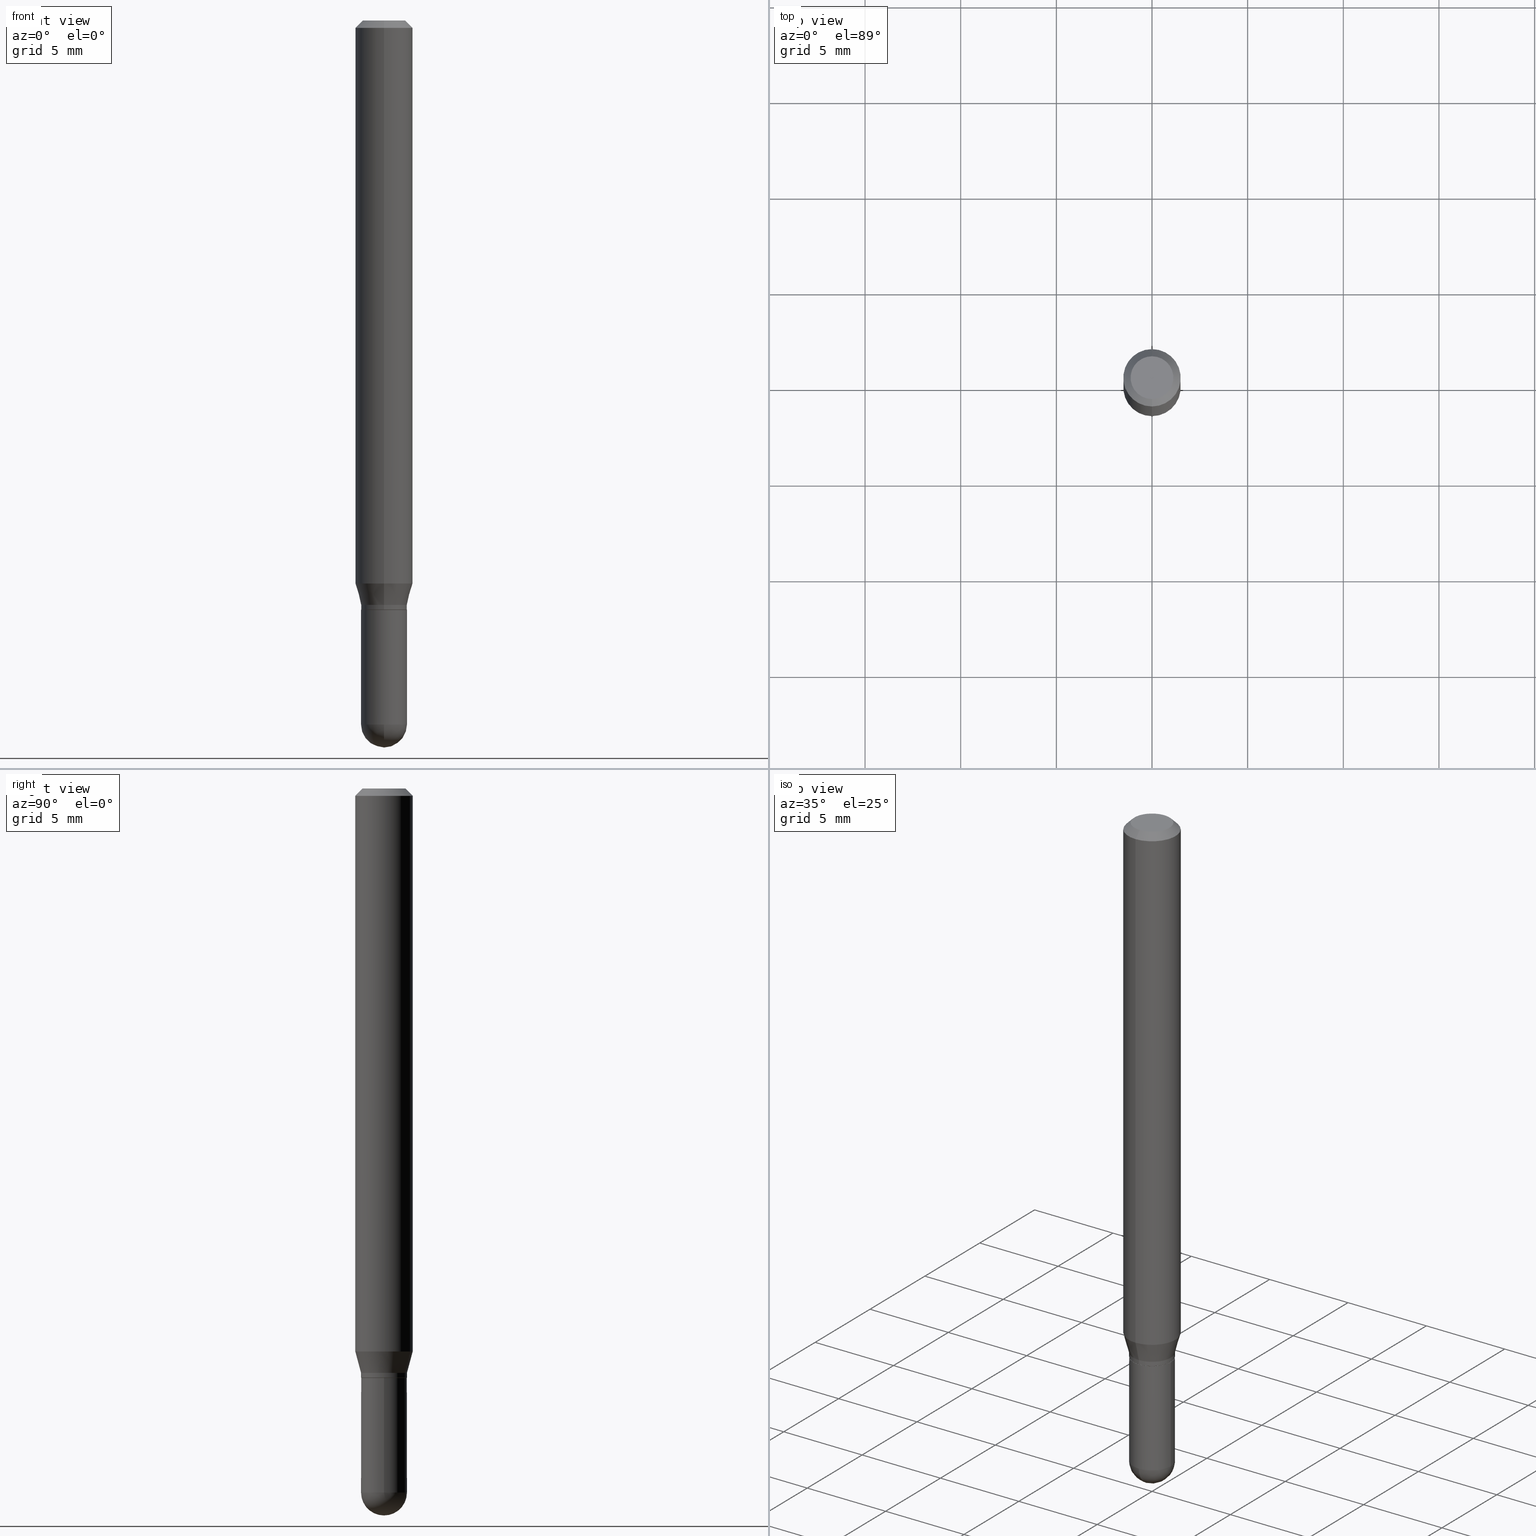
[diagram: canonical four-view strip — front | top / right | iso, engineering-drawing reading convention]
A machine part, canonical four-view strip (front | top / right | iso — engineering-drawing reading convention). The complete STEP part file that produces these views, byte-faithful:
ISO-10303-21;
HEADER;
FILE_DESCRIPTION (( 'STEP AP203' ),
    '1' );
FILE_NAME ('01963.STEP',
    '2024-03-07T19:49:01',
    ( '' ),
    ( '' ),
    'SwSTEP 2.0',
    'SolidWorks 2023',
    '' );
FILE_SCHEMA (( 'CONFIG_CONTROL_DESIGN' ));
ENDSEC;

DATA;
#1 = DIRECTION ( 'NONE',  ( -2.445405226276608487E-29, 3.491572388890901817E-15, 1.000000000000000000 ) ) ;
#2 = PERSON_AND_ORGANIZATION_ROLE ( 'creator' ) ;
#3 = ORIENTED_EDGE ( 'NONE', *, *, #89, .T. ) ;
#4 = AXIS2_PLACEMENT_3D ( 'NONE', #217, #78, #372 ) ;
#5 = SECURITY_CLASSIFICATION ( '', '', #176 ) ;
#6 = DIRECTION ( 'NONE',  ( 2.445405226276608487E-29, -3.491572388890901817E-15, -1.000000000000000000 ) ) ;
#7 = EDGE_CURVE ( 'NONE', #102, #155, #228, .T. ) ;
#8 = VERTEX_POINT ( 'NONE', #29 ) ;
#9 = DIRECTION ( 'NONE',  ( 4.937700262164548042E-15, 0.7071067811865451302, -0.7071067811865499042 ) ) ;
#10 = CC_DESIGN_PERSON_AND_ORGANIZATION_ASSIGNMENT ( #162, #508, ( #351 ) ) ;
#11 = AXIS2_PLACEMENT_3D ( 'NONE', #232, #469, #106 ) ;
#12 = ORIENTED_EDGE ( 'NONE', *, *, #163, .T. ) ;
#13 = LINE ( 'NONE', #483, #124 ) ;
#14 = ORIENTED_EDGE ( 'NONE', *, *, #385, .F. ) ;
#15 = CARTESIAN_POINT ( 'NONE',  ( -4.123439461173736383E-16, -0.05905000000000005383, -0.01499999999999981730 ) ) ;
#16 = AXIS2_PLACEMENT_3D ( 'NONE', #199, #511, #202 ) ;
#17 = ORIENTED_EDGE ( 'NONE', *, *, #369, .T. ) ;
#18 = EDGE_CURVE ( 'NONE', #155, #102, #407, .T. ) ;
#19 = DIRECTION ( 'NONE',  ( -2.445405226276608768E-29, 3.491572388890901817E-15, 1.000000000000000000 ) ) ;
#20 = DIRECTION ( 'NONE',  ( -2.445405226276608487E-29, 3.491572388890901817E-15, 1.000000000000000000 ) ) ;
#21 = EDGE_LOOP ( 'NONE', ( #410, #258, #398, #389, #46 ) ) ;
#22 = DIRECTION ( 'NONE',  ( -6.982962677686265922E-15, -1.000000000000000000, 3.491572388890901817E-15 ) ) ;
#23 = CC_DESIGN_PERSON_AND_ORGANIZATION_ASSIGNMENT ( #344, #2, ( #86 ) ) ;
#24 = ORIENTED_EDGE ( 'NONE', *, *, #283, .T. ) ;
#25 = AXIS2_PLACEMENT_3D ( 'NONE', #215, #181, #326 ) ;
#26 = APPROVAL_ROLE ( '' ) ;
#27 = AXIS2_PLACEMENT_3D ( 'NONE', #380, #189, #40 ) ;
#28 = LINE ( 'NONE', #184, #448 ) ;
#29 = CARTESIAN_POINT ( 'NONE',  ( 3.776534640565222593E-16, 0.04724999999999585781, -1.202600000000000113 ) ) ;
#30 = ORIENTED_EDGE ( 'NONE', *, *, #377, .F. ) ;
#31 = ADVANCED_FACE ( 'NONE', ( #98 ), #250, .T. ) ;
#32 = EDGE_LOOP ( 'NONE', ( #298, #471, #35, #174 ) ) ;
#33 = CARTESIAN_POINT ( 'NONE',  ( -4.123439461173456337E-16, -0.05905000000000405758, -1.158561800470687464 ) ) ;
#34 = CARTESIAN_POINT ( 'NONE',  ( -3.536586717851222218E-16, -0.04404999999999999888, 1.299455316038616904E-16 ) ) ;
#35 = ORIENTED_EDGE ( 'NONE', *, *, #329, .F. ) ;
#36 = DIRECTION ( 'NONE',  ( 1.000000000000000000, -6.982962677686256455E-15, 0.000000000000000000 ) ) ;
#37 = CARTESIAN_POINT ( 'NONE',  ( -3.299449865206470168E-16, -0.04725000000000425388, -1.202599999999999669 ) ) ;
#38 = AXIS2_PLACEMENT_3D ( 'NONE', #79, #114, #343 ) ;
#39 = AXIS2_PLACEMENT_3D ( 'NONE', #341, #1, #461 ) ;
#40 = DIRECTION ( 'NONE',  ( -6.982962677686265922E-15, -1.000000000000000000, 4.626330217890369336E-15 ) ) ;
#41 = CARTESIAN_POINT ( 'NONE',  ( 3.668107839414918214E-31, -5.237358583336361453E-17, -0.01500000000000002373 ) ) ;
#42 = APPROVAL_ROLE ( '' ) ;
#43 = ADVANCED_FACE ( 'NONE', ( #136 ), #292, .F. ) ;
#44 = DIRECTION ( 'NONE',  ( -6.982962677686265922E-15, -1.000000000000000000, 2.890844437739957528E-15 ) ) ;
#45 = PERSON_AND_ORGANIZATION ( #394, #393 ) ;
#46 = ORIENTED_EDGE ( 'NONE', *, *, #81, .T. ) ;
#47 = CARTESIAN_POINT ( 'NONE',  ( 3.543117479841335070E-29, -5.058632737782891656E-15, -1.448849999999999971 ) ) ;
#48 = CIRCLE ( 'NONE', #285, 0.04724999999999998646 ) ;
#49 = EDGE_CURVE ( 'NONE', #74, #178, #290, .T. ) ;
#50 = ORIENTED_EDGE ( 'NONE', *, *, #18, .T. ) ;
#51 = APPROVAL_STATUS ( 'not_yet_approved' ) ;
#52 = FACE_OUTER_BOUND ( 'NONE', #166, .T. ) ;
#53 = DIRECTION ( 'NONE',  ( -6.982962677686265922E-15, -1.000000000000000000, 4.626330217890369336E-15 ) ) ;
#54 = CIRCLE ( 'NONE', #151, 0.04724999999999979911 ) ;
#55 = EDGE_CURVE ( 'NONE', #155, #302, #495, .T. ) ;
#56 = CARTESIAN_POINT ( 'NONE',  ( 3.539076819124962473E-29, -5.064419193908863088E-15, -1.448849999999999971 ) ) ;
#57 = SPHERICAL_SURFACE ( 'NONE', #164, 0.04724999999999979911 ) ;
#58 = ORIENTED_EDGE ( 'NONE', *, *, #463, .F. ) ;
#59 = ADVANCED_BREP_SHAPE_REPRESENTATION ( '01963', ( #412, #427, #204 ), #506 ) ;
#60 = DIRECTION ( 'NONE',  ( -2.445468806185136597E-29, 3.491481338843145583E-15, 1.000000000000000000 ) ) ;
#61 = ADVANCED_FACE ( 'NONE', ( #52 ), #57, .T. ) ;
#62 = CONICAL_SURFACE ( 'NONE', #123, 0.05904999999999999832, 0.7853981633974483900 ) ;
#63 = APPROVAL_PERSON_ORGANIZATION ( #266, #145, #42 ) ;
#64 = CALENDAR_DATE ( 2024, 7, 3 ) ;
#65 = CARTESIAN_POINT ( 'NONE',  ( 0.000000000000000000, 0.000000000000000000, 0.000000000000000000 ) ) ;
#66 = ORIENTED_EDGE ( 'NONE', *, *, #120, .F. ) ;
#67 = DIRECTION ( 'NONE',  ( -2.445405226276607927E-29, 3.491572388890901817E-15, 1.000000000000000000 ) ) ;
#68 = PERSON_AND_ORGANIZATION ( #394, #393 ) ;
#69 = ORIENTED_EDGE ( 'NONE', *, *, #55, .T. ) ;
#70 = DIRECTION ( 'NONE',  ( 1.000000000000000000, 0.000000000000000000, 0.000000000000000000 ) ) ;
#71 = AXIS2_PLACEMENT_3D ( 'NONE', #56, #440, #175 ) ;
#72 = EDGE_CURVE ( 'NONE', #299, #400, #354, .T. ) ;
#73 = DIRECTION ( 'NONE',  ( 1.000000000000000000, -6.982962677686266711E-15, 4.876176775795935793E-29 ) ) ;
#74 = VERTEX_POINT ( 'NONE', #457 ) ;
#75 = DIRECTION ( 'NONE',  ( 1.000000000000000000, -6.982962677686267499E-15, 0.000000000000000000 ) ) ;
#76 = PLANE ( 'NONE',  #409 ) ;
#77 = CYLINDRICAL_SURFACE ( 'NONE', #257, 0.04724999999999998646 ) ;
#78 = DIRECTION ( 'NONE',  ( -2.445405226276608487E-29, 3.491572388890901817E-15, 1.000000000000000000 ) ) ;
#79 = CARTESIAN_POINT ( 'NONE',  ( 2.965298377383015246E-29, -4.233880678769106366E-15, -1.212599999999999900 ) ) ;
#80 = DIRECTION ( 'NONE',  ( -2.445405226276608768E-29, 3.491572388890901817E-15, 1.000000000000000000 ) ) ;
#81 = EDGE_CURVE ( 'NONE', #267, #74, #48, .T. ) ;
#82 = CARTESIAN_POINT ( 'NONE',  ( 2.964075674769876376E-29, -4.232134892574661651E-15, -1.212099999999999955 ) ) ;
#83 = AXIS2_PLACEMENT_3D ( 'NONE', #379, #374, #387 ) ;
#84 = CIRCLE ( 'NONE', #381, 0.04725000000000005584 ) ;
#85 = DIRECTION ( 'NONE',  ( -2.445405226276608487E-29, 3.491572388890901817E-15, 1.000000000000000000 ) ) ;
#86 = PRODUCT_DEFINITION ( 'UNKNOWN', '', #493, #364 ) ;
#87 = CARTESIAN_POINT ( 'NONE',  ( 4.195754854663675961E-16, 0.05904999999999994281, -0.01500000000000023016 ) ) ;
#88 = DATE_AND_TIME ( #312, #371 ) ;
#89 = EDGE_CURVE ( 'NONE', #267, #121, #465, .T. ) ;
#90 = CIRCLE ( 'NONE', #38, 0.04674999999999999295 ) ;
#91 = APPROVAL ( #51, 'UNSPECIFIED' ) ;
#92 = DIRECTION ( 'NONE',  ( 2.438088387897960049E-29, -3.491481338843145188E-15, -1.000000000000000000 ) ) ;
#93 = CARTESIAN_POINT ( 'NONE',  ( 2.833153081835456762E-29, -4.045202393347182480E-15, -1.158561800470687464 ) ) ;
#94 = CARTESIAN_POINT ( 'NONE',  ( 0.000000000000000000, 0.000000000000000000, 0.000000000000000000 ) ) ;
#95 = VERTEX_POINT ( 'NONE', #37 ) ;
#96 = CARTESIAN_POINT ( 'NONE',  ( 2.940844325120249058E-29, -4.198964954880197857E-15, -1.202599999999999891 ) ) ;
#97 = ADVANCED_FACE ( 'NONE', ( #193 ), #339, .T. ) ;
#98 = FACE_OUTER_BOUND ( 'NONE', #378, .T. ) ;
#99 = VECTOR ( 'NONE', #438, 39.37007874015748143 ) ;
#100 = DIRECTION ( 'NONE',  ( -6.982962677686265922E-15, -1.000000000000000000, 3.491572388890901817E-15 ) ) ;
#101 = DATE_AND_TIME ( #64, #476 ) ;
#102 = VERTEX_POINT ( 'NONE', #34 ) ;
#103 =( CONVERSION_BASED_UNIT ( 'INCH', #253 ) LENGTH_UNIT ( ) NAMED_UNIT ( #485 ) );
#104 = COORDINATED_UNIVERSAL_TIME_OFFSET ( 5, 0, .BEHIND. ) ;
#105 = VERTEX_POINT ( 'NONE', #334 ) ;
#106 = DIRECTION ( 'NONE',  ( -6.982962677686266711E-15, -1.000000000000000000, 2.921762560068730989E-15 ) ) ;
#107 = VECTOR ( 'NONE', #466, 39.37007874015748143 ) ;
#108 = AXIS2_PLACEMENT_3D ( 'NONE', #157, #222, #333 ) ;
#109 = SPHERICAL_SURFACE ( 'NONE', #459, 0.04724999999999979911 ) ;
#110 = CC_DESIGN_DATE_AND_TIME_ASSIGNMENT ( #88, #239, ( #86 ) ) ;
#111 = ORIENTED_EDGE ( 'NONE', *, *, #504, .T. ) ;
#112 = CARTESIAN_POINT ( 'NONE',  ( 3.539076819124962473E-29, -5.064419193908863088E-15, -1.448849999999999971 ) ) ;
#113 = DIRECTION ( 'NONE',  ( 5.024295867788190974E-15, 0.7071067811865681119, 0.7071067811865270336 ) ) ;
#114 = DIRECTION ( 'NONE',  ( -2.445405226276608487E-29, 3.491572388890901817E-15, 1.000000000000000000 ) ) ;
#115 = ORIENTED_EDGE ( 'NONE', *, *, #269, .T. ) ;
#116 = LINE ( 'NONE', #308, #182 ) ;
#117 = CLOSED_SHELL ( 'NONE', ( #97, #201, #138, #31, #449, #434, #310, #245, #413, #43, #249, #130 ) ) ;
#118 = VECTOR ( 'NONE', #335, 39.37007874015748854 ) ;
#119 = CARTESIAN_POINT ( 'NONE',  ( 0.04724999999999998646, -4.976146491152720682E-15, -1.448849999999999971 ) ) ;
#120 = EDGE_CURVE ( 'NONE', #95, #282, #403, .T. ) ;
#121 = VERTEX_POINT ( 'NONE', #149 ) ;
#122 = FACE_OUTER_BOUND ( 'NONE', #179, .T. ) ;
#123 = AXIS2_PLACEMENT_3D ( 'NONE', #41, #6, #270 ) ;
#124 = VECTOR ( 'NONE', #19, 39.37007874015748143 ) ;
#125 = DIRECTION ( 'NONE',  ( 1.000000000000000000, -6.982962677686266711E-15, 4.876176775795935793E-29 ) ) ;
#126 = ORIENTED_EDGE ( 'NONE', *, *, #489, .F. ) ;
#127 = CARTESIAN_POINT ( 'NONE',  ( -3.264535051818032208E-16, -0.04675000000000423261, -1.212599999999999900 ) ) ;
#128 = CARTESIAN_POINT ( 'NONE',  ( -3.299449865206470168E-16, -0.04725000000000431633, -1.212099999999999733 ) ) ;
#129 = CIRCLE ( 'NONE', #39, 0.05904999999999999832 ) ;
#130 = ADVANCED_FACE ( 'NONE', ( #306 ), #462, .T. ) ;
#131 = APPROVAL_DATE_TIME ( #255, #496 ) ;
#132 = EDGE_LOOP ( 'NONE', ( #486, #460, #213, #349 ) ) ;
#133 = CARTESIAN_POINT ( 'NONE',  ( -3.299449865206764511E-16, -0.04725000000000005584, 1.649767953750953050E-16 ) ) ;
#134 = ORIENTED_EDGE ( 'NONE', *, *, #385, .T. ) ;
#135 = CONICAL_SURFACE ( 'NONE', #11, 0.04674999999999999295, 0.7853981633974739252 ) ;
#136 = FACE_OUTER_BOUND ( 'NONE', #295, .T. ) ;
#137 = ORIENTED_EDGE ( 'NONE', *, *, #206, .T. ) ;
#138 = ADVANCED_FACE ( 'NONE', ( #180 ), #203, .T. ) ;
#139 = CARTESIAN_POINT ( 'NONE',  ( 4.123439461173743285E-16, 0.05904999999999994975, -0.01500000000000023016 ) ) ;
#140 = CARTESIAN_POINT ( 'NONE',  ( 3.357314426466771197E-16, 0.04724999999999585781, -1.202600000000000113 ) ) ;
#141 = DIRECTION ( 'NONE',  ( 6.982962677686265922E-15, 1.000000000000000000, -3.505890868245046092E-15 ) ) ;
#142 = ORIENTED_EDGE ( 'NONE', *, *, #209, .T. ) ;
#143 = VERTEX_POINT ( 'NONE', #297 ) ;
#144 = DIRECTION ( 'NONE',  ( -2.445468806185136877E-29, 3.491481338843145188E-15, 1.000000000000000000 ) ) ;
#145 = APPROVAL ( #419, 'UNSPECIFIED' ) ;
#146 = ORIENTED_EDGE ( 'NONE', *, *, #209, .F. ) ;
#147 = DIRECTION ( 'NONE',  ( -4.851104656540964275E-15, -0.7071067811865500152, -0.7071067811865450192 ) ) ;
#148 =( NAMED_UNIT ( * ) PLANE_ANGLE_UNIT ( ) SI_UNIT ( $, .RADIAN. ) );
#149 = CARTESIAN_POINT ( 'NONE',  ( 0.04724999999999999339, -4.563715258001873701E-15, -1.212599999999999900 ) ) ;
#150 = CIRCLE ( 'NONE', #430, 0.04725000000000005584 ) ;
#151 = AXIS2_PLACEMENT_3D ( 'NONE', #112, #264, #417 ) ;
#152 = LINE ( 'NONE', #140, #118 ) ;
#153 = CARTESIAN_POINT ( 'NONE',  ( 3.339550858072768183E-16, 0.04674999999999576022, -1.212600000000000122 ) ) ;
#154 = DATE_AND_TIME ( #235, #319 ) ;
#155 = VERTEX_POINT ( 'NONE', #454 ) ;
#156 = DIRECTION ( 'NONE',  ( -2.445405226276608487E-29, 3.491572388890901817E-15, 1.000000000000000000 ) ) ;
#157 = CARTESIAN_POINT ( 'NONE',  ( 2.940844325120249058E-29, -4.198964954880197857E-15, -1.202599999999999891 ) ) ;
#158 = CARTESIAN_POINT ( 'NONE',  ( 3.668107839414918214E-31, -5.237358583336361453E-17, -0.01500000000000002373 ) ) ;
#159 = APPROVAL_PERSON_ORGANIZATION ( #68, #496, #26 ) ;
#160 = ADVANCED_FACE ( 'NONE', ( #415 ), #77, .T. ) ;
#161 = DIRECTION ( 'NONE',  ( -2.445468806185136597E-29, 3.491481338843145583E-15, 1.000000000000000000 ) ) ;
#162 = PERSON_AND_ORGANIZATION ( #394, #393 ) ;
#163 = EDGE_CURVE ( 'NONE', #105, #299, #211, .T. ) ;
#164 = AXIS2_PLACEMENT_3D ( 'NONE', #382, #510, #368 ) ;
#165 = CIRCLE ( 'NONE', #108, 0.04725000000000005584 ) ;
#166 = EDGE_LOOP ( 'NONE', ( #416, #273, #395, #315 ) ) ;
#167 = CC_DESIGN_PERSON_AND_ORGANIZATION_ASSIGNMENT ( #251, #444, ( #493 ) ) ;
#168 = EDGE_LOOP ( 'NONE', ( #14, #247, #363, #30 ) ) ;
#169 = UNCERTAINTY_MEASURE_WITH_UNIT (LENGTH_MEASURE( 1.000000000000000082E-05 ), #103, 'distance_accuracy_value', 'NONE');
#170 = ORIENTED_EDGE ( 'NONE', *, *, #49, .F. ) ;
#171 = VECTOR ( 'NONE', #144, 39.37007874015748143 ) ;
#172 = CIRCLE ( 'NONE', #346, 0.05904999999999999832 ) ;
#173 = ADVANCED_FACE ( 'NONE', ( #122 ), #277, .F. ) ;
#174 = ORIENTED_EDGE ( 'NONE', *, *, #473, .F. ) ;
#175 = DIRECTION ( 'NONE',  ( -6.982962677686265922E-15, -1.000000000000000000, 0.000000000000000000 ) ) ;
#176 = SECURITY_CLASSIFICATION_LEVEL ( 'unclassified' ) ;
#177 = EDGE_CURVE ( 'NONE', #178, #143, #226, .T. ) ;
#178 = VERTEX_POINT ( 'NONE', #411 ) ;
#179 = EDGE_LOOP ( 'NONE', ( #24, #317 ) ) ;
#180 = FACE_OUTER_BOUND ( 'NONE', #236, .T. ) ;
#181 = DIRECTION ( 'NONE',  ( -2.445468806185136597E-29, 3.491481338843145583E-15, 1.000000000000000000 ) ) ;
#182 = VECTOR ( 'NONE', #386, 39.37007874015748143 ) ;
#183 = PERSON_AND_ORGANIZATION_ROLE ( 'creator' ) ;
#184 = CARTESIAN_POINT ( 'NONE',  ( 4.195754854663390985E-16, 0.05904999999999999832, -2.061773495640077583E-16 ) ) ;
#185 = EDGE_LOOP ( 'NONE', ( #214, #361, #205, #170 ) ) ;
#186 = ORIENTED_EDGE ( 'NONE', *, *, #206, .F. ) ;
#187 = CYLINDRICAL_SURFACE ( 'NONE', #360, 0.05904999999999999832 ) ;
#188 = CARTESIAN_POINT ( 'NONE',  ( 3.321787289678764184E-16, 0.04674999999999576022, -1.212600000000000122 ) ) ;
#189 = DIRECTION ( 'NONE',  ( -2.445405226276608487E-29, 3.491572388890901817E-15, 1.000000000000000000 ) ) ;
#190 = CARTESIAN_POINT ( 'NONE',  ( 5.834304553255448569E-46, -8.330274454162373459E-32, -2.385823212678253349E-17 ) ) ;
#191 = VECTOR ( 'NONE', #9, 39.37007874015748143 ) ;
#192 = CARTESIAN_POINT ( 'NONE',  ( 2.965375474380096235E-29, -4.233770271481197693E-15, -1.212599999999999900 ) ) ;
#193 = FACE_OUTER_BOUND ( 'NONE', #32, .T. ) ;
#194 = AXIS2_PLACEMENT_3D ( 'NONE', #94, #60, #125 ) ;
#195 = CC_DESIGN_APPROVAL ( #91, ( #86 ) ) ;
#196 = CC_DESIGN_DATE_AND_TIME_ASSIGNMENT ( #101, #327, ( #5 ) ) ;
#197 = CARTESIAN_POINT ( 'NONE',  ( 3.075995059520799729E-16, 0.04404999999999999888, -1.657328797940354752E-16 ) ) ;
#198 = CARTESIAN_POINT ( 'NONE',  ( -0.04724999999999998646, 3.357314426466472416E-16, -2.324196830145442465E-30 ) ) ;
#199 = CARTESIAN_POINT ( 'NONE',  ( 2.965298377383015246E-29, -4.233880678769106366E-15, -1.212599999999999900 ) ) ;
#200 = APPROVAL_ROLE ( '' ) ;
#201 = ADVANCED_FACE ( 'NONE', ( #425 ), #237, .T. ) ;
#202 = DIRECTION ( 'NONE',  ( -6.982962677686266711E-15, -1.000000000000000000, 2.921762560068730989E-15 ) ) ;
#203 = CONICAL_SURFACE ( 'NONE', #421, 0.05904999999999999832, 0.7853981633974483900 ) ;
#204 = AXIS2_PLACEMENT_3D ( 'NONE', #293, #451, #70 ) ;
#205 = ORIENTED_EDGE ( 'NONE', *, *, #320, .F. ) ;
#206 = EDGE_CURVE ( 'NONE', #299, #105, #90, .T. ) ;
#207 = AXIS2_PLACEMENT_3D ( 'NONE', #304, #507, #36 ) ;
#208 = FACE_OUTER_BOUND ( 'NONE', #21, .T. ) ;
#209 = EDGE_CURVE ( 'NONE', #102, #499, #229, .T. ) ;
#210 = CARTESIAN_POINT ( 'NONE',  ( 2.940844325120249058E-29, -4.198964954880197857E-15, -1.202599999999999891 ) ) ;
#211 = CIRCLE ( 'NONE', #248, 0.04674999999999999295 ) ;
#212 = CIRCLE ( 'NONE', #278, 0.05904999999999999832 ) ;
#213 = ORIENTED_EDGE ( 'NONE', *, *, #120, .T. ) ;
#214 = ORIENTED_EDGE ( 'NONE', *, *, #348, .F. ) ;
#215 = CARTESIAN_POINT ( 'NONE',  ( 3.543117479841335070E-29, -5.058632737782891656E-15, -1.448849999999999971 ) ) ;
#216 = APPROVAL_STATUS ( 'not_yet_approved' ) ;
#217 = CARTESIAN_POINT ( 'NONE',  ( 5.834304553255448569E-46, -8.330274454162373459E-32, -2.385823212678253349E-17 ) ) ;
#218 = CC_DESIGN_APPROVAL ( #496, ( #5 ) ) ;
#219 = APPLICATION_CONTEXT ( 'configuration controlled 3d designs of mechanical parts and assemblies' ) ;
#220 = CARTESIAN_POINT ( 'NONE',  ( 2.965298377383015246E-29, -4.233880678769106366E-15, -1.212599999999999900 ) ) ;
#221 = ORIENTED_EDGE ( 'NONE', *, *, #377, .T. ) ;
#222 = DIRECTION ( 'NONE',  ( -2.445405226276608487E-29, 3.491572388890901817E-15, 1.000000000000000000 ) ) ;
#223 = DIRECTION ( 'NONE',  ( 1.000000000000000000, -6.982962677686267499E-15, 0.000000000000000000 ) ) ;
#224 = DIRECTION ( 'NONE',  ( 2.445405226276607927E-29, -3.491572388890901817E-15, -1.000000000000000000 ) ) ;
#225 = VERTEX_POINT ( 'NONE', #234 ) ;
#226 = LINE ( 'NONE', #198, #107 ) ;
#227 = MECHANICAL_CONTEXT ( 'NONE', #262, 'mechanical' ) ;
#228 = CIRCLE ( 'NONE', #4, 0.04404999999999999888 ) ;
#229 = LINE ( 'NONE', #272, #359 ) ;
#230 = COORDINATED_UNIVERSAL_TIME_OFFSET ( 5, 0, .BEHIND. ) ;
#231 = DIRECTION ( 'NONE',  ( -6.982962677686265922E-15, -1.000000000000000000, 5.781688875479946610E-15 ) ) ;
#232 = CARTESIAN_POINT ( 'NONE',  ( 2.965298377383015246E-29, -4.233880678769106366E-15, -1.212599999999999900 ) ) ;
#233 = EDGE_CURVE ( 'NONE', #435, #400, #150, .T. ) ;
#234 = CARTESIAN_POINT ( 'NONE',  ( 3.652604889859023213E-29, -5.232284915232186807E-15, -1.496099999999999985 ) ) ;
#235 = CALENDAR_DATE ( 2024, 7, 3 ) ;
#236 = EDGE_LOOP ( 'NONE', ( #243, #142, #254, #396 ) ) ;
#237 = CONICAL_SURFACE ( 'NONE', #16, 0.04674999999999999295, 0.7853981633974739252 ) ;
#238 = CONICAL_SURFACE ( 'NONE', #259, 0.04725000000000005584, 0.2617993877991504625 ) ;
#239 = DATE_TIME_ROLE ( 'creation_date' ) ;
#240 = DIRECTION ( 'NONE',  ( -1.000000000000000000, 6.982962677686265922E-15, -4.876176775795935793E-29 ) ) ;
#241 = DIRECTION ( 'NONE',  ( -2.445405226276608487E-29, 3.491572388890901817E-15, 1.000000000000000000 ) ) ;
#242 = AXIS2_PLACEMENT_3D ( 'NONE', #338, #85, #44 ) ;
#243 = ORIENTED_EDGE ( 'NONE', *, *, #7, .F. ) ;
#244 = DIRECTION ( 'NONE',  ( -2.445405226276608487E-29, 3.491572388890901817E-15, 1.000000000000000000 ) ) ;
#245 = ADVANCED_FACE ( 'NONE', ( #260 ), #62, .T. ) ;
#246 = LINE ( 'NONE', #133, #99 ) ;
#247 = ORIENTED_EDGE ( 'NONE', *, *, #388, .T. ) ;
#248 = AXIS2_PLACEMENT_3D ( 'NONE', #220, #376, #472 ) ;
#249 = ADVANCED_FACE ( 'NONE', ( #456 ), #135, .T. ) ;
#250 = CYLINDRICAL_SURFACE ( 'NONE', #370, 0.05904999999999999832 ) ;
#251 = PERSON_AND_ORGANIZATION ( #394, #393 ) ;
#252 = ORIENTED_EDGE ( 'NONE', *, *, #163, .F. ) ;
#253 = LENGTH_MEASURE_WITH_UNIT ( LENGTH_MEASURE( 0.02539999999999999897 ), #479 );
#254 = ORIENTED_EDGE ( 'NONE', *, *, #316, .T. ) ;
#255 = DATE_AND_TIME ( #488, #439 ) ;
#256 = CARTESIAN_POINT ( 'NONE',  ( 0.000000000000000000, 0.000000000000000000, 0.000000000000000000 ) ) ;
#257 = AXIS2_PLACEMENT_3D ( 'NONE', #256, #408, #73 ) ;
#258 = ORIENTED_EDGE ( 'NONE', *, *, #177, .T. ) ;
#259 = AXIS2_PLACEMENT_3D ( 'NONE', #96, #244, #481 ) ;
#260 = FACE_OUTER_BOUND ( 'NONE', #279, .T. ) ;
#261 = DIRECTION ( 'NONE',  ( 1.000000000000000000, -6.982962677686265922E-15, 4.883557194083112901E-29 ) ) ;
#262 = APPLICATION_CONTEXT ( 'configuration controlled 3d designs of mechanical parts and assemblies' ) ;
#263 = EDGE_LOOP ( 'NONE', ( #406, #17, #498, #126 ) ) ;
#264 = DIRECTION ( 'NONE',  ( 1.000000000000000000, -7.105427357601001070E-15, 4.926315508542082329E-29 ) ) ;
#265 = DIRECTION ( 'NONE',  ( -2.445405226276608487E-29, 3.491572388890901817E-15, 1.000000000000000000 ) ) ;
#266 = PERSON_AND_ORGANIZATION ( #394, #393 ) ;
#267 = VERTEX_POINT ( 'NONE', #119 ) ;
#268 = DIRECTION ( 'NONE',  ( -2.445468806185136597E-29, 3.491481338843145583E-15, 1.000000000000000000 ) ) ;
#269 = EDGE_CURVE ( 'NONE', #490, #267, #446, .T. ) ;
#270 = DIRECTION ( 'NONE',  ( 6.982962677686265922E-15, 1.000000000000000000, -3.505890868245046092E-15 ) ) ;
#271 = LOCAL_TIME ( 14, 49, 1.000000000000000000, #309 ) ;
#272 = CARTESIAN_POINT ( 'NONE',  ( -4.051124067684085231E-16, -0.05905000000000005383, -0.01499999999999981730 ) ) ;
#273 = ORIENTED_EDGE ( 'NONE', *, *, #348, .T. ) ;
#274 = DIRECTION ( 'NONE',  ( -2.445405226276608487E-29, 3.491572388890901817E-15, 1.000000000000000000 ) ) ;
#275 = DIRECTION ( 'NONE',  ( -2.445405226276608487E-29, 3.491572388890901817E-15, 1.000000000000000000 ) ) ;
#276 = APPROVAL_DATE_TIME ( #154, #91 ) ;
#277 = PLANE ( 'NONE',  #482 ) ;
#278 = AXIS2_PLACEMENT_3D ( 'NONE', #93, #392, #53 ) ;
#279 = EDGE_LOOP ( 'NONE', ( #146, #491, #69, #221 ) ) ;
#280 = DIRECTION ( 'NONE',  ( -2.445405226276608487E-29, 3.491572388890901817E-15, 1.000000000000000000 ) ) ;
#281 = PRODUCT_DEFINITION_SHAPE ( 'NONE', 'NONE',  #86 ) ;
#282 = VERTEX_POINT ( 'NONE', #33 ) ;
#283 = EDGE_CURVE ( 'NONE', #121, #143, #352, .T. ) ;
#284 = DIRECTION ( 'NONE',  ( -4.937700262164674260E-15, -0.7071067811865632269, 0.7071067811865319186 ) ) ;
#285 = AXIS2_PLACEMENT_3D ( 'NONE', #500, #268, #223 ) ;
#286 = CC_DESIGN_SECURITY_CLASSIFICATION ( #5, ( #493 ) ) ;
#287 = EDGE_CURVE ( 'NONE', #400, #8, #116, .T. ) ;
#288 = ORIENTED_EDGE ( 'NONE', *, *, #468, .T. ) ;
#289 = EDGE_LOOP ( 'NONE', ( #12, #367, #478, #487 ) ) ;
#290 = CIRCLE ( 'NONE', #25, 0.04724999999999998646 ) ;
#291 = CONICAL_SURFACE ( 'NONE', #432, 0.04725000000000005584, 0.2617993877991504625 ) ;
#292 = PLANE ( 'NONE',  #492 ) ;
#293 = CARTESIAN_POINT ( 'NONE',  ( 0.000000000000000000, 0.000000000000000000, 0.000000000000000000 ) ) ;
#294 = ORIENTED_EDGE ( 'NONE', *, *, #316, .F. ) ;
#295 = EDGE_LOOP ( 'NONE', ( #252, #186 ) ) ;
#296 = PERSON_AND_ORGANIZATION_ROLE ( 'classification_officer' ) ;
#297 = CARTESIAN_POINT ( 'NONE',  ( -0.04724999999999999339, -4.310470061985398025E-15, -1.212599999999999900 ) ) ;
#298 = ORIENTED_EDGE ( 'NONE', *, *, #233, .T. ) ;
#299 = VERTEX_POINT ( 'NONE', #153 ) ;
#300 = CARTESIAN_POINT ( 'NONE',  ( -3.299449865206470168E-16, -0.04725000000000425388, -1.202599999999999669 ) ) ;
#301 = AXIS2_PLACEMENT_3D ( 'NONE', #190, #501, #445 ) ;
#302 = VERTEX_POINT ( 'NONE', #87 ) ;
#303 = CIRCLE ( 'NONE', #353, 0.04724999999999998646 ) ;
#304 = CARTESIAN_POINT ( 'NONE',  ( 2.965375474380096235E-29, -4.233770271481197693E-15, -1.212599999999999900 ) ) ;
#305 =( NAMED_UNIT ( * ) SI_UNIT ( $, .STERADIAN. ) SOLID_ANGLE_UNIT ( ) );
#306 = FACE_OUTER_BOUND ( 'NONE', #263, .T. ) ;
#307 = CARTESIAN_POINT ( 'NONE',  ( 4.195754854663673496E-16, 0.05904999999999594601, -1.158561800470687686 ) ) ;
#308 = CARTESIAN_POINT ( 'NONE',  ( 3.357314426466476853E-16, 0.04725000000000005584, -1.649767953750953050E-16 ) ) ;
#309 = COORDINATED_UNIVERSAL_TIME_OFFSET ( 5, 0, .BEHIND. ) ;
#310 = ADVANCED_FACE ( 'NONE', ( #345 ), #187, .T. ) ;
#311 = CARTESIAN_POINT ( 'NONE',  ( 0.000000000000000000, 0.000000000000000000, 0.000000000000000000 ) ) ;
#312 = CALENDAR_DATE ( 2024, 7, 3 ) ;
#313 = AXIS2_PLACEMENT_3D ( 'NONE', #509, #156, #384 ) ;
#314 = CIRCLE ( 'NONE', #71, 0.04724999999999979911 ) ;
#315 = ORIENTED_EDGE ( 'NONE', *, *, #269, .F. ) ;
#316 = EDGE_CURVE ( 'NONE', #499, #302, #129, .T. ) ;
#317 = ORIENTED_EDGE ( 'NONE', *, *, #340, .T. ) ;
#318 = VECTOR ( 'NONE', #503, 39.37007874015748854 ) ;
#319 = LOCAL_TIME ( 14, 49, 1.000000000000000000, #470 ) ;
#320 = EDGE_CURVE ( 'NONE', #178, #490, #303, .T. ) ;
#321 = ORIENTED_EDGE ( 'NONE', *, *, #7, .T. ) ;
#322 = CYLINDRICAL_SURFACE ( 'NONE', #194, 0.04724999999999998646 ) ;
#323 = DIRECTION ( 'NONE',  ( -6.982962677686265922E-15, -1.000000000000000000, 3.491572388890902212E-15 ) ) ;
#324 = CALENDAR_DATE ( 2024, 7, 3 ) ;
#325 = CC_DESIGN_APPROVAL ( #145, ( #493 ) ) ;
#326 = DIRECTION ( 'NONE',  ( 1.000000000000000000, -6.982962677686267499E-15, 0.000000000000000000 ) ) ;
#327 = DATE_TIME_ROLE ( 'classification_date' ) ;
#328 = FACE_OUTER_BOUND ( 'NONE', #332, .T. ) ;
#329 = EDGE_CURVE ( 'NONE', #95, #8, #165, .T. ) ;
#330 = ORIENTED_EDGE ( 'NONE', *, *, #329, .T. ) ;
#331 = APPLICATION_PROTOCOL_DEFINITION ( 'international standard', 'config_control_design', 1994, #262 ) ;
#332 = EDGE_LOOP ( 'NONE', ( #50, #321 ) ) ;
#333 = DIRECTION ( 'NONE',  ( -6.982962677686265922E-15, -1.000000000000000000, 2.890844437739957528E-15 ) ) ;
#334 = CARTESIAN_POINT ( 'NONE',  ( -3.264535051818032208E-16, -0.04675000000000423261, -1.212599999999999900 ) ) ;
#335 = DIRECTION ( 'NONE',  ( 1.839019923739601499E-15, 0.2588190451025251249, 0.9659258262890670910 ) ) ;
#336 = VERTEX_POINT ( 'NONE', #307 ) ;
#337 = CIRCLE ( 'NONE', #242, 0.04725000000000005584 ) ;
#338 = CARTESIAN_POINT ( 'NONE',  ( 2.964075674769876376E-29, -4.232134892574661651E-15, -1.212099999999999955 ) ) ;
#339 = CYLINDRICAL_SURFACE ( 'NONE', #313, 0.04725000000000005584 ) ;
#340 = EDGE_CURVE ( 'NONE', #143, #121, #467, .T. ) ;
#341 = CARTESIAN_POINT ( 'NONE',  ( 3.668107839414918214E-31, -5.237358583336361453E-17, -0.01500000000000002373 ) ) ;
#342 = DIRECTION ( 'NONE',  ( 6.982962677686265922E-15, 1.000000000000000000, -3.491572388890901817E-15 ) ) ;
#343 = DIRECTION ( 'NONE',  ( -6.982962677686266711E-15, -1.000000000000000000, 2.921762560068730989E-15 ) ) ;
#344 = PERSON_AND_ORGANIZATION ( #394, #393 ) ;
#345 = FACE_OUTER_BOUND ( 'NONE', #168, .T. ) ;
#346 = AXIS2_PLACEMENT_3D ( 'NONE', #158, #275, #512 ) ;
#347 = FACE_OUTER_BOUND ( 'NONE', #132, .T. ) ;
#348 = EDGE_CURVE ( 'NONE', #225, #74, #54, .T. ) ;
#349 = ORIENTED_EDGE ( 'NONE', *, *, #388, .F. ) ;
#350 = ORIENTED_EDGE ( 'NONE', *, *, #177, .F. ) ;
#351 = PRODUCT ( '01963', '01963', '', ( #227 ) ) ;
#352 = CIRCLE ( 'NONE', #207, 0.04724999999999999339 ) ;
#353 = AXIS2_PLACEMENT_3D ( 'NONE', #47, #161, #75 ) ;
#354 = LINE ( 'NONE', #188, #474 ) ;
#355 = FACE_OUTER_BOUND ( 'NONE', #365, .T. ) ;
#356 = PRODUCT_RELATED_PRODUCT_CATEGORY ( 'detail', '', ( #351 ) ) ;
#357 = EDGE_LOOP ( 'NONE', ( #350, #453, #115, #3, #402 ) ) ;
#358 = DIRECTION ( 'NONE',  ( -6.982962677686265922E-15, -1.000000000000000000, 2.890844437739957528E-15 ) ) ;
#359 = VECTOR ( 'NONE', #147, 39.37007874015748143 ) ;
#360 = AXIS2_PLACEMENT_3D ( 'NONE', #311, #265, #464 ) ;
#361 = ORIENTED_EDGE ( 'NONE', *, *, #441, .T. ) ;
#362 = CC_DESIGN_PERSON_AND_ORGANIZATION_ASSIGNMENT ( #452, #183, ( #493 ) ) ;
#363 = ORIENTED_EDGE ( 'NONE', *, *, #463, .T. ) ;
#364 = DESIGN_CONTEXT ( 'detailed design', #219, 'design' ) ;
#365 = EDGE_LOOP ( 'NONE', ( #330, #373, #455, #66 ) ) ;
#366 = DIRECTION ( 'NONE',  ( -6.982962677686265922E-15, -1.000000000000000000, 2.890844437739957528E-15 ) ) ;
#367 = ORIENTED_EDGE ( 'NONE', *, *, #72, .T. ) ;
#368 = DIRECTION ( 'NONE',  ( -6.982962677686265922E-15, -1.000000000000000000, 5.781688875479946610E-15 ) ) ;
#369 = EDGE_CURVE ( 'NONE', #400, #435, #337, .T. ) ;
#370 = AXIS2_PLACEMENT_3D ( 'NONE', #65, #20, #323 ) ;
#371 = LOCAL_TIME ( 14, 49, 1.000000000000000000, #230 ) ;
#372 = DIRECTION ( 'NONE',  ( -6.982962677686265133E-15, -1.000000000000000000, 3.491572388890902212E-15 ) ) ;
#373 = ORIENTED_EDGE ( 'NONE', *, *, #426, .T. ) ;
#374 = DIRECTION ( 'NONE',  ( -2.445468806185136597E-29, 3.491481338843145583E-15, 1.000000000000000000 ) ) ;
#375 = CARTESIAN_POINT ( 'NONE',  ( 0.04724999999999998646, -3.299449865206760074E-16, 2.303993526563579130E-30 ) ) ;
#376 = DIRECTION ( 'NONE',  ( -2.445405226276608487E-29, 3.491572388890901817E-15, 1.000000000000000000 ) ) ;
#377 = EDGE_CURVE ( 'NONE', #302, #499, #172, .T. ) ;
#378 = EDGE_LOOP ( 'NONE', ( #111, #134, #294, #58 ) ) ;
#379 = CARTESIAN_POINT ( 'NONE',  ( 3.543117479841335070E-29, -5.058632737782891656E-15, -1.448849999999999971 ) ) ;
#380 = CARTESIAN_POINT ( 'NONE',  ( 2.833153081835456762E-29, -4.045202393347182480E-15, -1.158561800470687464 ) ) ;
#381 = AXIS2_PLACEMENT_3D ( 'NONE', #210, #280, #358 ) ;
#382 = CARTESIAN_POINT ( 'NONE',  ( 3.539076819124962473E-29, -5.064419193908863088E-15, -1.448849999999999971 ) ) ;
#383 = DIRECTION ( 'NONE',  ( -2.445405226276608487E-29, 3.491572388890901817E-15, 1.000000000000000000 ) ) ;
#384 = DIRECTION ( 'NONE',  ( -6.982962677686265922E-15, -1.000000000000000000, 3.491572388890901817E-15 ) ) ;
#385 = EDGE_CURVE ( 'NONE', #336, #302, #28, .T. ) ;
#386 = DIRECTION ( 'NONE',  ( -2.445405226276608768E-29, 3.491572388890901817E-15, 1.000000000000000000 ) ) ;
#387 = DIRECTION ( 'NONE',  ( 1.000000000000000000, -6.982962677686267499E-15, 0.000000000000000000 ) ) ;
#388 = EDGE_CURVE ( 'NONE', #336, #282, #390, .T. ) ;
#389 = ORIENTED_EDGE ( 'NONE', *, *, #89, .F. ) ;
#390 = CIRCLE ( 'NONE', #27, 0.05904999999999999832 ) ;
#391 = CARTESIAN_POINT ( 'NONE',  ( 0.000000000000000000, 0.000000000000000000, 0.000000000000000000 ) ) ;
#392 = DIRECTION ( 'NONE',  ( -2.445405226276608487E-29, 3.491572388890901817E-15, 1.000000000000000000 ) ) ;
#393 = ORGANIZATION ( 'UNSPECIFIED', 'UNSPECIFIED', '' ) ;
#394 = PERSON ( 'UNSPECIFIED', 'UNSPECIFIED', 'UNSPECIFIED', ('UNSPECIFIED'), ('UNSPECIFIED'), ('UNSPECIFIED') ) ;
#395 = ORIENTED_EDGE ( 'NONE', *, *, #81, .F. ) ;
#396 = ORIENTED_EDGE ( 'NONE', *, *, #55, .F. ) ;
#397 = AXIS2_PLACEMENT_3D ( 'NONE', #391, #241, #22 ) ;
#398 = ORIENTED_EDGE ( 'NONE', *, *, #283, .F. ) ;
#399 = PERSON_AND_ORGANIZATION ( #394, #393 ) ;
#400 = VERTEX_POINT ( 'NONE', #458 ) ;
#401 = ADVANCED_FACE ( 'NONE', ( #414 ), #109, .T. ) ;
#402 = ORIENTED_EDGE ( 'NONE', *, *, #340, .F. ) ;
#403 = LINE ( 'NONE', #300, #318 ) ;
#404 = COORDINATED_UNIVERSAL_TIME_OFFSET ( 5, 0, .BEHIND. ) ;
#405 = CARTESIAN_POINT ( 'NONE',  ( 3.668107839414918214E-31, -5.237358583336361453E-17, -0.01500000000000002373 ) ) ;
#406 = ORIENTED_EDGE ( 'NONE', *, *, #287, .F. ) ;
#407 = CIRCLE ( 'NONE', #301, 0.04404999999999999888 ) ;
#408 = DIRECTION ( 'NONE',  ( -2.445468806185136597E-29, 3.491481338843145583E-15, 1.000000000000000000 ) ) ;
#409 = AXIS2_PLACEMENT_3D ( 'NONE', #197, #224, #342 ) ;
#410 = ORIENTED_EDGE ( 'NONE', *, *, #49, .T. ) ;
#411 = CARTESIAN_POINT ( 'NONE',  ( -0.04724999999999998646, -4.310470061985398025E-15, -1.448849999999999971 ) ) ;
#412 = MANIFOLD_SOLID_BREP ( 'Body-Move/Copy2[1]', #437 ) ;
#413 = ADVANCED_FACE ( 'NONE', ( #328 ), #76, .F. ) ;
#414 = FACE_OUTER_BOUND ( 'NONE', #185, .T. ) ;
#415 = FACE_OUTER_BOUND ( 'NONE', #357, .T. ) ;
#416 = ORIENTED_EDGE ( 'NONE', *, *, #441, .F. ) ;
#417 = DIRECTION ( 'NONE',  ( 7.105427357601001070E-15, 1.000000000000000000, 0.000000000000000000 ) ) ;
#418 = DIRECTION ( 'NONE',  ( -2.445468806185136597E-29, 3.491481338843145583E-15, 1.000000000000000000 ) ) ;
#419 = APPROVAL_STATUS ( 'not_yet_approved' ) ;
#420 = CARTESIAN_POINT ( 'NONE',  ( 3.539076819124962473E-29, -5.064419193908863088E-15, -1.448849999999999971 ) ) ;
#421 = AXIS2_PLACEMENT_3D ( 'NONE', #405, #497, #141 ) ;
#422 = APPROVAL_PERSON_ORGANIZATION ( #45, #91, #200 ) ;
#423 = DIRECTION ( 'NONE',  ( 1.000000000000000000, -6.982962677686256455E-15, 0.000000000000000000 ) ) ;
#424 = CARTESIAN_POINT ( 'NONE',  ( 2.940844325120249058E-29, -4.198964954880197857E-15, -1.202599999999999891 ) ) ;
#425 = FACE_OUTER_BOUND ( 'NONE', #289, .T. ) ;
#426 = EDGE_CURVE ( 'NONE', #8, #336, #152, .T. ) ;
#427 = MANIFOLD_SOLID_BREP ( 'Body-Move/Copy2[2]', #117 ) ;
#428 = APPLICATION_PROTOCOL_DEFINITION ( 'international standard', 'config_control_design', 1994, #219 ) ;
#429 = CC_DESIGN_PERSON_AND_ORGANIZATION_ASSIGNMENT ( #399, #296, ( #5 ) ) ;
#430 = AXIS2_PLACEMENT_3D ( 'NONE', #82, #383, #502 ) ;
#431 = EDGE_LOOP ( 'NONE', ( #442, #137, #288, #480 ) ) ;
#432 = AXIS2_PLACEMENT_3D ( 'NONE', #424, #274, #366 ) ;
#433 = CARTESIAN_POINT ( 'NONE',  ( 3.299449865207056883E-16, 0.04724999999999576067, -1.212600000000000122 ) ) ;
#434 = ADVANCED_FACE ( 'NONE', ( #347 ), #291, .T. ) ;
#435 = VERTEX_POINT ( 'NONE', #128 ) ;
#436 = CARTESIAN_POINT ( 'NONE',  ( -3.299449865206399170E-16, -0.04725000000000495470, -1.448849999999999749 ) ) ;
#437 = CLOSED_SHELL ( 'NONE', ( #477, #61, #173, #401, #160 ) ) ;
#438 = DIRECTION ( 'NONE',  ( -2.445405226276608768E-29, 3.491572388890901817E-15, 1.000000000000000000 ) ) ;
#439 = LOCAL_TIME ( 14, 49, 1.000000000000000000, #104 ) ;
#440 = DIRECTION ( 'NONE',  ( -1.000000000000000000, 6.982962677686265922E-15, -4.883557194083112340E-29 ) ) ;
#441 = EDGE_CURVE ( 'NONE', #225, #490, #314, .T. ) ;
#442 = ORIENTED_EDGE ( 'NONE', *, *, #72, .F. ) ;
#443 = LINE ( 'NONE', #127, #475 ) ;
#444 = PERSON_AND_ORGANIZATION_ROLE ( 'design_supplier' ) ;
#445 = DIRECTION ( 'NONE',  ( -6.982962677686265133E-15, -1.000000000000000000, 3.491572388890902212E-15 ) ) ;
#446 = CIRCLE ( 'NONE', #83, 0.04724999999999998646 ) ;
#447 = SHAPE_DEFINITION_REPRESENTATION ( #281, #59 ) ;
#448 = VECTOR ( 'NONE', #80, 39.37007874015748143 ) ;
#449 = ADVANCED_FACE ( 'NONE', ( #355 ), #238, .T. ) ;
#450 = CARTESIAN_POINT ( 'NONE',  ( 2.965298377383015246E-29, -4.233880678769106366E-15, -1.212599999999999900 ) ) ;
#451 = DIRECTION ( 'NONE',  ( 0.000000000000000000, 0.000000000000000000, 1.000000000000000000 ) ) ;
#452 = PERSON_AND_ORGANIZATION ( #394, #393 ) ;
#453 = ORIENTED_EDGE ( 'NONE', *, *, #320, .T. ) ;
#454 = CARTESIAN_POINT ( 'NONE',  ( 3.599717260347271507E-16, 0.04404999999999999888, -1.776619958574267204E-16 ) ) ;
#455 = ORIENTED_EDGE ( 'NONE', *, *, #504, .F. ) ;
#456 = FACE_OUTER_BOUND ( 'NONE', #431, .T. ) ;
#457 = CARTESIAN_POINT ( 'NONE',  ( 3.357314426466819515E-16, 0.04724999999999483086, -1.448850000000000415 ) ) ;
#458 = CARTESIAN_POINT ( 'NONE',  ( 3.357314426466771690E-16, 0.04724999999999579536, -1.212099999999999955 ) ) ;
#459 = AXIS2_PLACEMENT_3D ( 'NONE', #420, #261, #231 ) ;
#460 = ORIENTED_EDGE ( 'NONE', *, *, #489, .T. ) ;
#461 = DIRECTION ( 'NONE',  ( -6.982962677686265922E-15, -1.000000000000000000, 3.505890868245046092E-15 ) ) ;
#462 = CYLINDRICAL_SURFACE ( 'NONE', #397, 0.04725000000000005584 ) ;
#463 = EDGE_CURVE ( 'NONE', #282, #499, #13, .T. ) ;
#464 = DIRECTION ( 'NONE',  ( -6.982962677686265922E-15, -1.000000000000000000, 3.491572388890902212E-15 ) ) ;
#465 = LINE ( 'NONE', #375, #171 ) ;
#466 = DIRECTION ( 'NONE',  ( -2.445468806185136877E-29, 3.491481338843145188E-15, 1.000000000000000000 ) ) ;
#467 = CIRCLE ( 'NONE', #484, 0.04724999999999999339 ) ;
#468 = EDGE_CURVE ( 'NONE', #105, #435, #443, .T. ) ;
#469 = DIRECTION ( 'NONE',  ( -2.445405226276608487E-29, 3.491572388890901817E-15, 1.000000000000000000 ) ) ;
#470 = COORDINATED_UNIVERSAL_TIME_OFFSET ( 5, 0, .BEHIND. ) ;
#471 = ORIENTED_EDGE ( 'NONE', *, *, #287, .T. ) ;
#472 = DIRECTION ( 'NONE',  ( -6.982962677686266711E-15, -1.000000000000000000, 2.921762560068730989E-15 ) ) ;
#473 = EDGE_CURVE ( 'NONE', #435, #95, #246, .T. ) ;
#474 = VECTOR ( 'NONE', #113, 39.37007874015748143 ) ;
#475 = VECTOR ( 'NONE', #284, 39.37007874015748143 ) ;
#476 = LOCAL_TIME ( 14, 49, 1.000000000000000000, #404 ) ;
#477 = ADVANCED_FACE ( 'NONE', ( #208 ), #322, .T. ) ;
#478 = ORIENTED_EDGE ( 'NONE', *, *, #233, .F. ) ;
#479 =( LENGTH_UNIT ( ) NAMED_UNIT ( * ) SI_UNIT ( $, .METRE. ) );
#480 = ORIENTED_EDGE ( 'NONE', *, *, #369, .F. ) ;
#481 = DIRECTION ( 'NONE',  ( -6.982962677686265922E-15, -1.000000000000000000, 2.890844437739957528E-15 ) ) ;
#482 = AXIS2_PLACEMENT_3D ( 'NONE', #433, #92, #240 ) ;
#483 = CARTESIAN_POINT ( 'NONE',  ( -4.123439461173739834E-16, -0.05904999999999999832, 2.061773495640077583E-16 ) ) ;
#484 = AXIS2_PLACEMENT_3D ( 'NONE', #192, #418, #423 ) ;
#485 = DIMENSIONAL_EXPONENTS ( 1.000000000000000000, 0.000000000000000000, 0.000000000000000000, 0.000000000000000000, 0.000000000000000000, 0.000000000000000000, 0.000000000000000000 ) ;
#486 = ORIENTED_EDGE ( 'NONE', *, *, #426, .F. ) ;
#487 = ORIENTED_EDGE ( 'NONE', *, *, #468, .F. ) ;
#488 = CALENDAR_DATE ( 2024, 7, 3 ) ;
#489 = EDGE_CURVE ( 'NONE', #8, #95, #84, .T. ) ;
#490 = VERTEX_POINT ( 'NONE', #436 ) ;
#491 = ORIENTED_EDGE ( 'NONE', *, *, #18, .F. ) ;
#492 = AXIS2_PLACEMENT_3D ( 'NONE', #450, #67, #100 ) ;
#493 = PRODUCT_DEFINITION_FORMATION_WITH_SPECIFIED_SOURCE ( 'ANY', '', #351, .NOT_KNOWN. ) ;
#494 = DATE_AND_TIME ( #324, #271 ) ;
#495 = LINE ( 'NONE', #139, #191 ) ;
#496 = APPROVAL ( #216, 'UNSPECIFIED' ) ;
#497 = DIRECTION ( 'NONE',  ( 2.445405226276608487E-29, -3.491572388890901817E-15, -1.000000000000000000 ) ) ;
#498 = ORIENTED_EDGE ( 'NONE', *, *, #473, .T. ) ;
#499 = VERTEX_POINT ( 'NONE', #15 ) ;
#500 = CARTESIAN_POINT ( 'NONE',  ( 3.543117479841335070E-29, -5.058632737782891656E-15, -1.448849999999999971 ) ) ;
#501 = DIRECTION ( 'NONE',  ( -2.445405226276608487E-29, 3.491572388890901817E-15, 1.000000000000000000 ) ) ;
#502 = DIRECTION ( 'NONE',  ( -6.982962677686265922E-15, -1.000000000000000000, 2.890844437739957528E-15 ) ) ;
#503 = DIRECTION ( 'NONE',  ( -1.807323732225331323E-15, -0.2588190451025183525, 0.9659258262890689783 ) ) ;
#504 = EDGE_CURVE ( 'NONE', #282, #336, #212, .T. ) ;
#505 = APPROVAL_DATE_TIME ( #494, #145 ) ;
#506 =( GEOMETRIC_REPRESENTATION_CONTEXT ( 3 ) GLOBAL_UNCERTAINTY_ASSIGNED_CONTEXT ( ( #169 ) ) GLOBAL_UNIT_ASSIGNED_CONTEXT ( ( #103, #148, #305 ) ) REPRESENTATION_CONTEXT ( 'NONE', 'WORKASPACE' ) );
#507 = DIRECTION ( 'NONE',  ( -2.445468806185136597E-29, 3.491481338843145583E-15, 1.000000000000000000 ) ) ;
#508 = PERSON_AND_ORGANIZATION_ROLE ( 'design_owner' ) ;
#509 = CARTESIAN_POINT ( 'NONE',  ( 0.000000000000000000, 0.000000000000000000, 0.000000000000000000 ) ) ;
#510 = DIRECTION ( 'NONE',  ( 1.000000000000000000, -6.982962677686265922E-15, 4.883557194083112901E-29 ) ) ;
#511 = DIRECTION ( 'NONE',  ( -2.445405226276608487E-29, 3.491572388890901817E-15, 1.000000000000000000 ) ) ;
#512 = DIRECTION ( 'NONE',  ( -6.982962677686265922E-15, -1.000000000000000000, 3.505890868245046092E-15 ) ) ;
ENDSEC;
END-ISO-10303-21;
